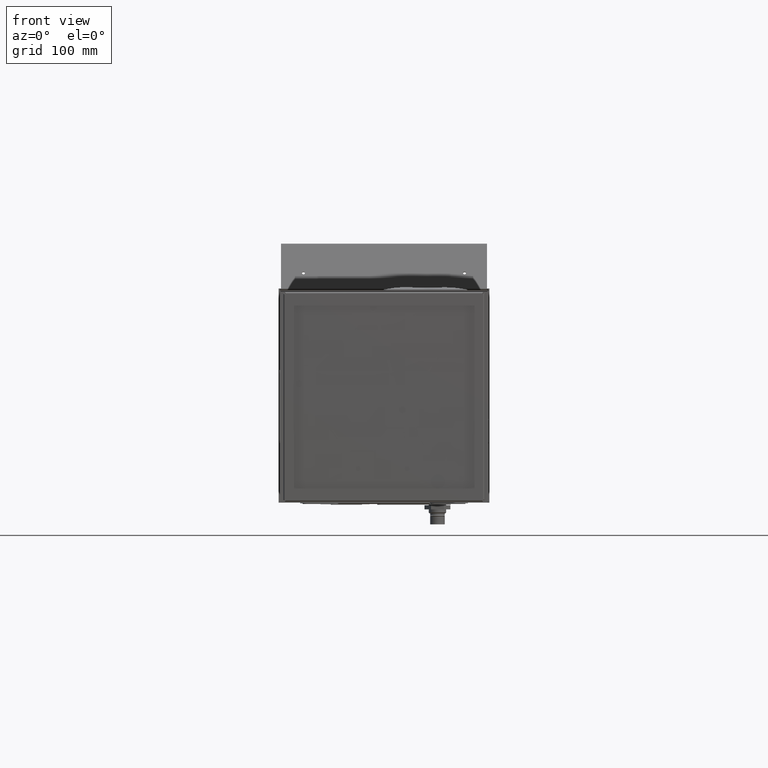
[diagram: clean part render]
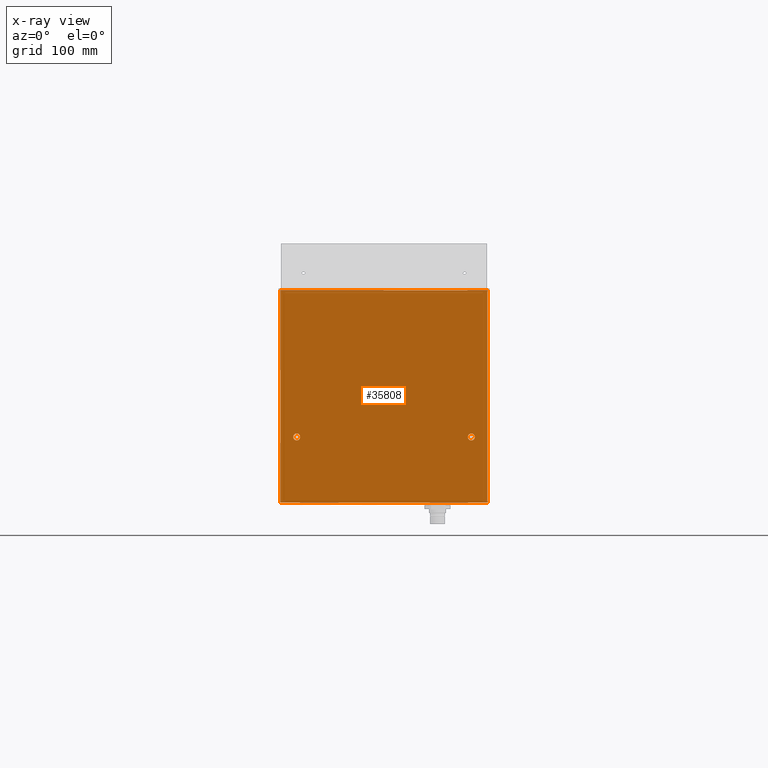
[diagram: x-ray — body ghosted, one internal face saturated and labeled with its STEP entity id]
A machine part, front view, then the same camera in x-ray: the body is ghosted and one INTERNAL B-rep face — a face not visible from any outside direction — is saturated and labeled: STEP entity #35808.
In plain terms, the highlighted planar face has unit normal (-0, 1, -0).
Its self-contained STEP definition (entity closure, byte-faithful):
#2022 = CARTESIAN_POINT ( 'NONE',  ( 5.875984251968503713, 18.00603293707421315, -5.987107994823150037 ) ) ;
#2285 = VERTEX_POINT ( 'NONE', #7072 ) ;
#2348 = DIRECTION ( 'NONE',  ( 3.275188005741776261E-20, -0.9999999999404064477, 1.091729334712356534E-05 ) ) ;
#3124 = LINE ( 'NONE', #18130, #20089 ) ;
#3785 = PLANE ( 'NONE',  #7468 ) ;
#4072 = DIRECTION ( 'NONE',  ( 1.000000000000000000, 3.276229677454505405E-20, 9.541481430247698699E-19 ) ) ;
#5492 = EDGE_LOOP ( 'NONE', ( #19250, #19794 ) ) ;
#6646 = ORIENTED_EDGE ( 'NONE', *, *, #24008, .F. ) ;
#7072 = CARTESIAN_POINT ( 'NONE',  ( 5.825984251968503891, 18.00603293707421315, -5.987107994823150037 ) ) ;
#7468 = AXIS2_PLACEMENT_3D ( 'NONE', #29303, #10147, #23551 ) ;
#7613 = DIRECTION ( 'NONE',  ( -9.541485006438173917E-19, 1.091729334800000389E-05, 0.9999999999404064477 ) ) ;
#8803 = VECTOR ( 'NONE', #34853, 39.37007874015748143 ) ;
#9196 = FACE_OUTER_BOUND ( 'NONE', #15829, .T. ) ;
#10147 = DIRECTION ( 'NONE',  ( -3.275188005741781076E-20, 0.9999999999404064477, -1.091729334800000389E-05 ) ) ;
#12677 = CARTESIAN_POINT ( 'NONE',  ( -4.921259842519732253, 18.00607329989803063, -2.289962325752145755 ) ) ;
#12735 = CARTESIAN_POINT ( 'NONE',  ( -4.921259842519732253, 18.00607115082452836, -2.486812719441201303 ) ) ;
#13398 = VECTOR ( 'NONE', #44756, 39.37007874015748143 ) ;
#14827 = ORIENTED_EDGE ( 'NONE', *, *, #55402, .F. ) ;
#15087 = ORIENTED_EDGE ( 'NONE', *, *, #24144, .F. ) ;
#15247 = VERTEX_POINT ( 'NONE', #16342 ) ;
#15543 = DIRECTION ( 'NONE',  ( 3.275188005741776261E-20, -0.9999999999404064477, 1.091729334712356534E-05 ) ) ;
#15829 = EDGE_LOOP ( 'NONE', ( #6646, #61396, #49990, #14827 ) ) ;
#16342 = CARTESIAN_POINT ( 'NONE',  ( -5.825984251968503891, 18.00616348469263883, 5.970766020212264102 ) ) ;
#17264 = CARTESIAN_POINT ( 'NONE',  ( 4.921259842519638106, 18.00607544897149381, -2.093111932063086655 ) ) ;
#17510 = CARTESIAN_POINT ( 'NONE',  ( -5.825984251968503891, 18.00603293707421315, -5.987107994823150037 ) ) ;
#18130 = CARTESIAN_POINT ( 'NONE',  ( -5.825984251968503891, 18.00603293707421315, -5.987107994823150037 ) ) ;
#18765 = LINE ( 'NONE', #33429, #29239 ) ;
#19005 = VERTEX_POINT ( 'NONE', #17510 ) ;
#19098 = FACE_BOUND ( 'NONE', #5492, .T. ) ;
#19250 = ORIENTED_EDGE ( 'NONE', *, *, #36752, .F. ) ;
#19794 = ORIENTED_EDGE ( 'NONE', *, *, #41083, .F. ) ;
#20089 = VECTOR ( 'NONE', #7613, 39.37007874015748143 ) ;
#22146 = EDGE_CURVE ( 'NONE', #2285, #19005, #26275, .T. ) ;
#23116 = CARTESIAN_POINT ( 'NONE',  ( 4.921259842519638106, 18.00607115082452836, -2.486812719441201303 ) ) ;
#23551 = DIRECTION ( 'NONE',  ( -1.000000000000000000, 0.000000000000000000, 3.000000001229040790E-15 ) ) ;
#23842 = EDGE_CURVE ( 'NONE', #19005, #15247, #3124, .T. ) ;
#24008 = EDGE_CURVE ( 'NONE', #15247, #26221, #18765, .T. ) ;
#24144 = EDGE_CURVE ( 'NONE', #42212, #41467, #62806, .T. ) ;
#25428 = CARTESIAN_POINT ( 'NONE',  ( 4.921259842519638106, 18.00607329989803063, -2.289962325752145755 ) ) ;
#26221 = VERTEX_POINT ( 'NONE', #36356 ) ;
#26275 = LINE ( 'NONE', #2022, #13398 ) ;
#27194 = DIRECTION ( 'NONE',  ( 3.275188005741776261E-20, -0.9999999999404064477, 1.091729334712356534E-05 ) ) ;
#29239 = VECTOR ( 'NONE', #4072, 39.37007874015748143 ) ;
#29303 = CARTESIAN_POINT ( 'NONE',  ( 5.875984251968503713, 18.00603293707421315, -5.987107994823150037 ) ) ;
#29674 = EDGE_CURVE ( 'NONE', #41467, #42212, #41300, .T. ) ;
#30310 = AXIS2_PLACEMENT_3D ( 'NONE', #41546, #27194, #60975 ) ;
#30393 = LINE ( 'NONE', #54278, #8803 ) ;
#31290 = CIRCLE ( 'NONE', #61791, 0.1968503937007872462 ) ;
#32390 = CARTESIAN_POINT ( 'NONE',  ( -4.921259842519732253, 18.00607544897149381, -2.093111932063090652 ) ) ;
#33429 = CARTESIAN_POINT ( 'NONE',  ( -5.825984251968503891, 18.00616348469263883, 5.970766020212264102 ) ) ;
#34853 = DIRECTION ( 'NONE',  ( 9.541485006438173917E-19, -1.091729334800000389E-05, -0.9999999999404064477 ) ) ;
#35808 = ADVANCED_FACE ( 'NONE', ( #9196, #19098, #62755 ), #3785, .F. ) ;
#36356 = CARTESIAN_POINT ( 'NONE',  ( 5.825984251968503891, 18.00616348469263883, 5.970766020212264102 ) ) ;
#36752 = EDGE_CURVE ( 'NONE', #41359, #39373, #40500, .T. ) ;
#39373 = VERTEX_POINT ( 'NONE', #12735 ) ;
#40500 = CIRCLE ( 'NONE', #30310, 0.1968503937007872462 ) ;
#40627 = DIRECTION ( 'NONE',  ( 0.000000000000000000, 1.091729334712355687E-05, 0.9999999999404063367 ) ) ;
#41083 = EDGE_CURVE ( 'NONE', #39373, #41359, #31290, .T. ) ;
#41300 = CIRCLE ( 'NONE', #50566, 0.1968503937007872462 ) ;
#41359 = VERTEX_POINT ( 'NONE', #32390 ) ;
#41467 = VERTEX_POINT ( 'NONE', #23116 ) ;
#41546 = CARTESIAN_POINT ( 'NONE',  ( -4.921259842519732253, 18.00607329989803063, -2.289962325752145755 ) ) ;
#42212 = VERTEX_POINT ( 'NONE', #17264 ) ;
#43475 = AXIS2_PLACEMENT_3D ( 'NONE', #25428, #15543, #49004 ) ;
#44756 = DIRECTION ( 'NONE',  ( -1.000000000000000000, -3.276229677454505405E-20, -9.541481430247698699E-19 ) ) ;
#49004 = DIRECTION ( 'NONE',  ( 0.000000000000000000, 1.091729334712355687E-05, 0.9999999999404063367 ) ) ;
#49990 = ORIENTED_EDGE ( 'NONE', *, *, #22146, .F. ) ;
#50566 = AXIS2_PLACEMENT_3D ( 'NONE', #55582, #2348, #40627 ) ;
#50832 = EDGE_LOOP ( 'NONE', ( #15087, #61408 ) ) ;
#52187 = DIRECTION ( 'NONE',  ( 0.000000000000000000, 1.091729334712355687E-05, 0.9999999999404063367 ) ) ;
#54278 = CARTESIAN_POINT ( 'NONE',  ( 5.825984251968503891, 18.00616403055732562, 6.020766020209291192 ) ) ;
#55402 = EDGE_CURVE ( 'NONE', #26221, #2285, #30393, .T. ) ;
#55582 = CARTESIAN_POINT ( 'NONE',  ( 4.921259842519638106, 18.00607329989803063, -2.289962325752145755 ) ) ;
#60975 = DIRECTION ( 'NONE',  ( 0.000000000000000000, 1.091729334712355687E-05, 0.9999999999404063367 ) ) ;
#61396 = ORIENTED_EDGE ( 'NONE', *, *, #23842, .F. ) ;
#61408 = ORIENTED_EDGE ( 'NONE', *, *, #29674, .F. ) ;
#61445 = DIRECTION ( 'NONE',  ( 3.275188005741776261E-20, -0.9999999999404064477, 1.091729334712356534E-05 ) ) ;
#61791 = AXIS2_PLACEMENT_3D ( 'NONE', #12677, #61445, #52187 ) ;
#62755 = FACE_BOUND ( 'NONE', #50832, .T. ) ;
#62806 = CIRCLE ( 'NONE', #43475, 0.1968503937007872462 ) ;